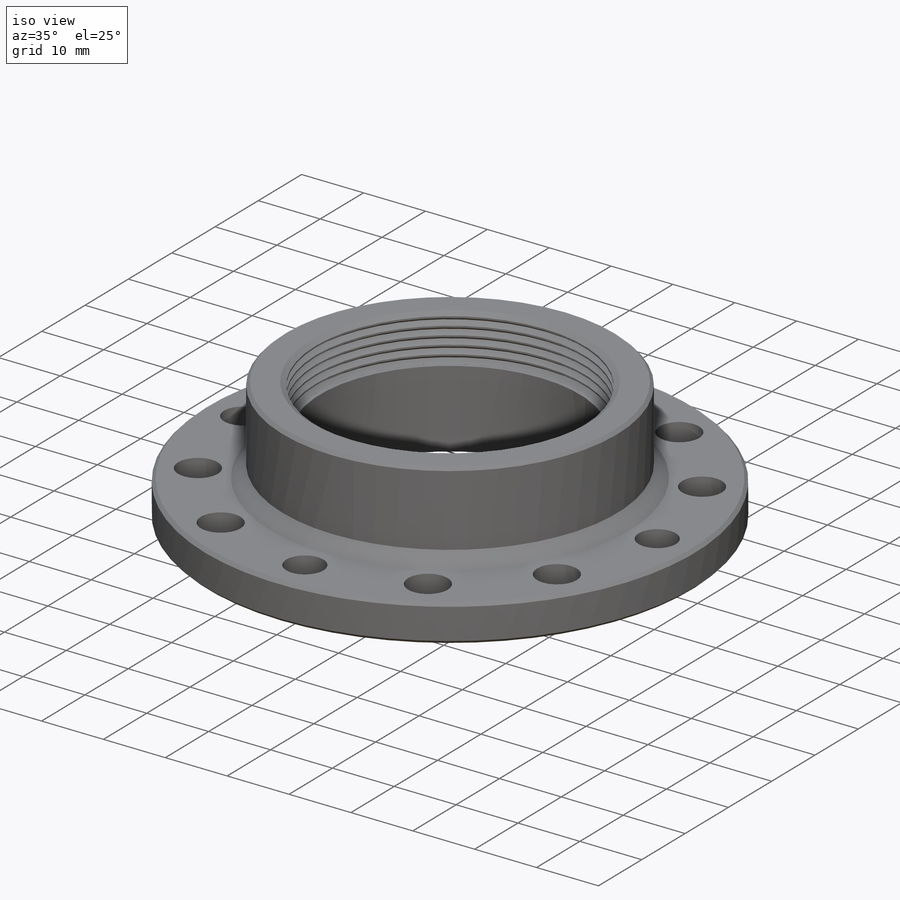
[diagram: iso view]
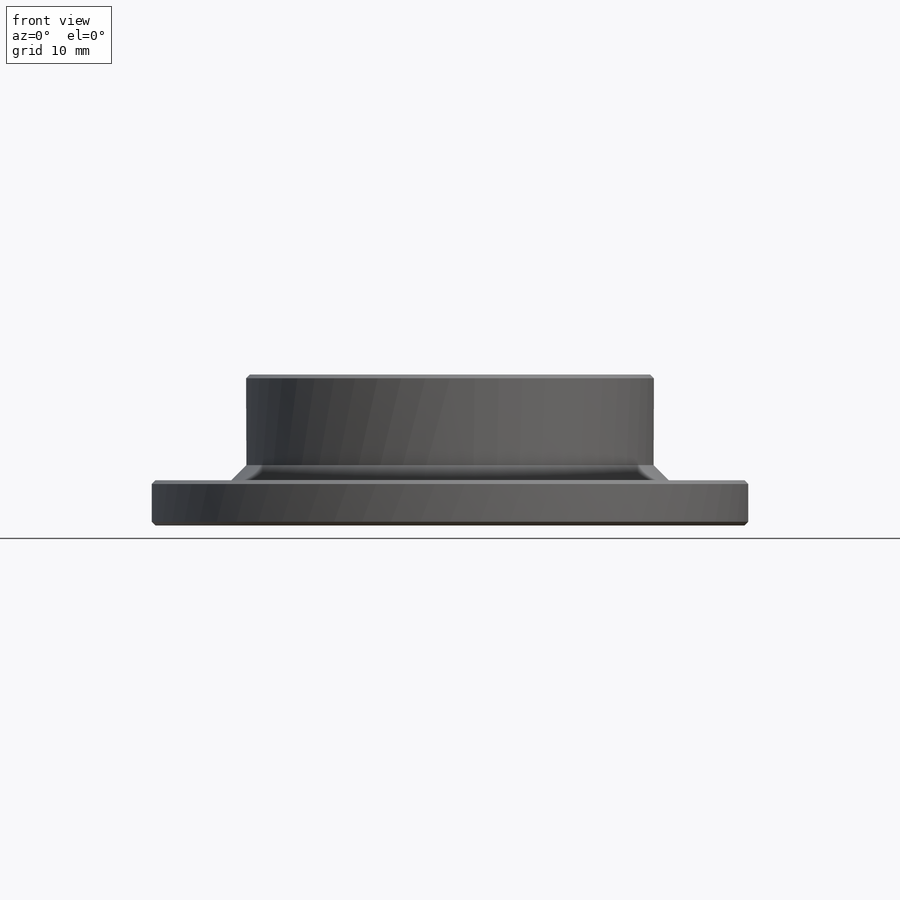
[diagram: front view]
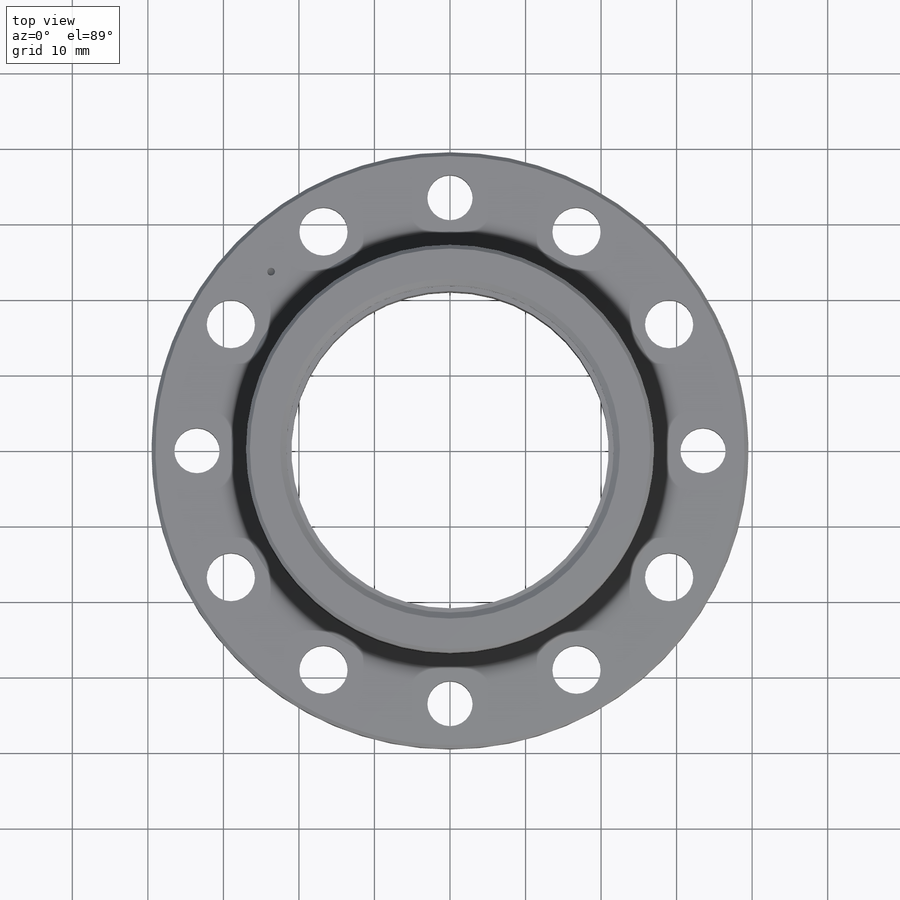
[diagram: top view]
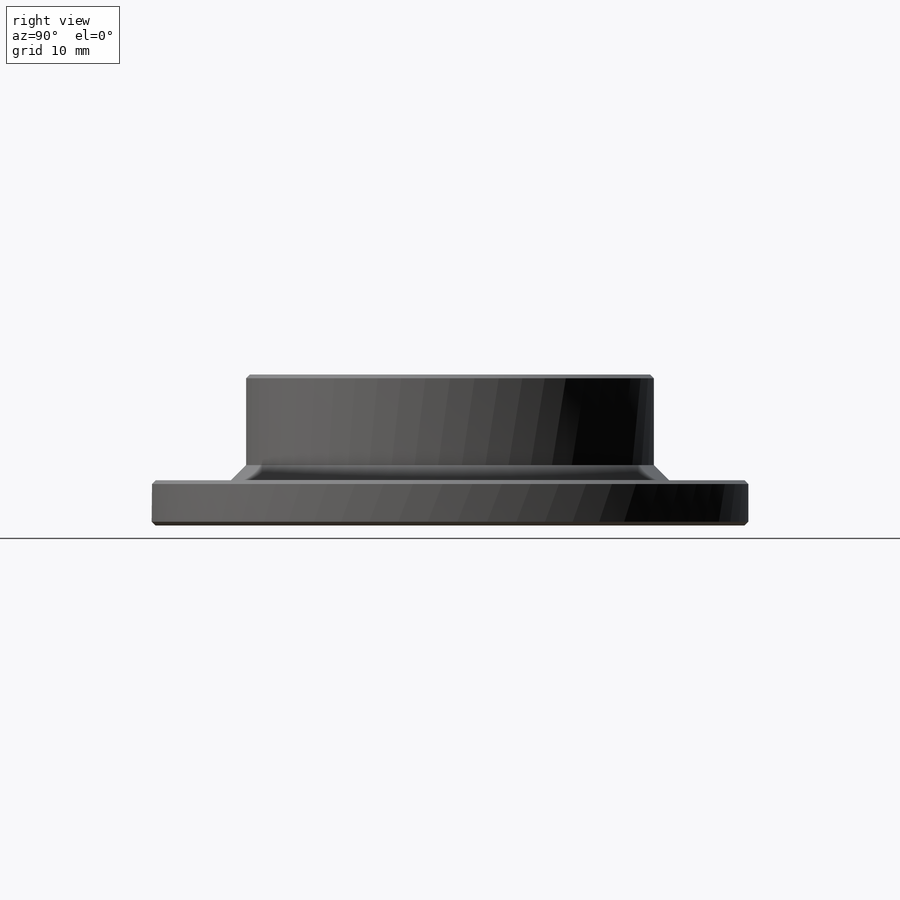
[diagram: right view]
SOLIDWORKS PART (.sldprt)
format: sldprt  version: not decoded by parser v0  size: 308,736 bytes
history: native  units: mm
features: sketch x7, plane x3, chamfer x2, cut_extrude x2, cut_revolve x2, material x1, revolve x1, hole x1, pattern_linear x1 + 4 further entries (+9 scaffold rows collapsed; 1 parser-record rows omitted)
feature tree (34):
  scaffold x9  (default folders/planes/origin — collapsed)
  material  " 09Г2С ГОСТ 4543-71"
  plane  "Спереди"
  plane  "Сверху"
  plane  "Слева"
  "Начало координат"
  "PTricksFreeParameters"
  "PTricksEqu"
  "PTricksFreeParameters"
  sketch  "Эскиз1"  dims[D1=20.0mm D2=6.0mm D3=12.5mm D4=42.0mm]
  revolve  "Повернуть1"  Angle=360deg
  chamfer  "Фаска1"  Distance=2mm Angle=45deg
  chamfer  "Фаска2"  Distance=0.5mm Angle=45deg
  sketch  "Эскиз2"  dims[c1.D1=~69.077759mm c1.D2=6.0mm c2.D1=6.0mm]
  hole  "Отверстие с зазором M61"  [1 undecoded]
  sketch  "Трехмерный эскиз1"
  sketch  "Эскиз3"  dims[hole-wizard template sketch: 59 standard entries collapsed; hole parameters kept: c18.Диаметр сквозного отверстия=6.4mm c18.Глубина сквозного отверстия=6.0mm]
  cut_extrude  "Вытянуть1"  [1 undecoded]
  sketch  "Эскиз6"  dims[c1.D2=0.5mm c1.D1=~44.631489mm c2.D1=135.0deg]
  cut_revolve  "Вырез-Повернуть2"  Angle=360deg
  parser-record x1  (decoder bookkeeping rows leaked as tree rows — omitted from the tree; the rows remain in map.json)
  sketch  "Эскиз4"  dims[D1=43.376mm]
  cut_extrude  "Вытянуть2"  Depth=7.5mm
  sketch  "Эскиз5"  dims[c1.D1=~1.566464mm c2.D1=70.0deg c2.D2=30.0mm c2.D3=45.0mm c2.D4=~1.137137mm]
  cut_revolve  "Вырез-Повернуть1"  Angle=360deg
  pattern_linear  "Линейный массив1"  Count1=6 Count2=1 Spacing1=1.386mm Spacing2=10mm
decode coverage: 13 of 16 modeling features carry decoded parameters; 4 rows unclassified (native names shown)
note: ~ marks probable driven/reference dimensions
note: 2 parameter values undecoded
note: suppression state not decoded; provenance and decode notes live in map.json
